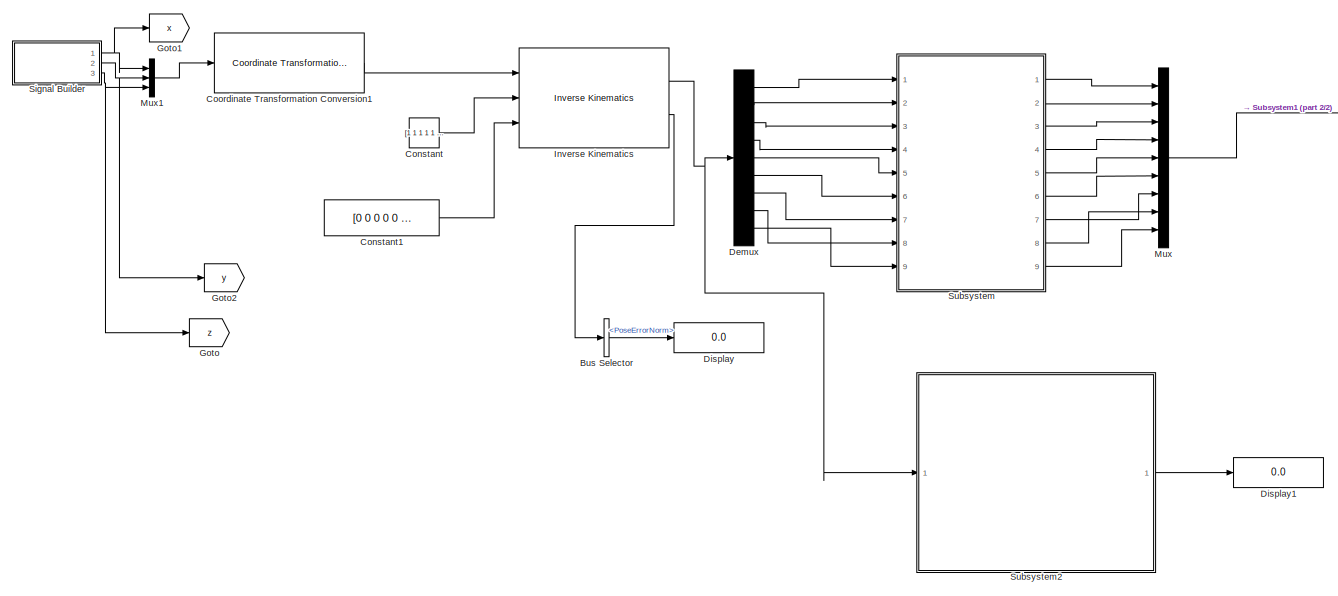
[diagram: root canvas - part 1/2, center side, full height]
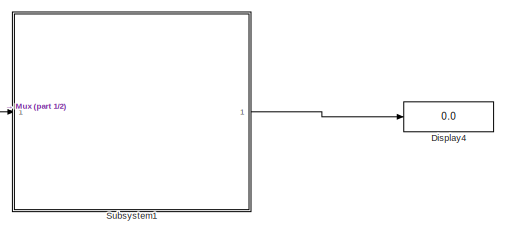
[diagram: root canvas - part 2/2, top right region]
MODEL slx_d25287b4f298
KIND model
CONFIG AbsTol = auto
CONFIG EnableMultiTasking = off
CONFIG FixedStep = auto
CONFIG MaxStep = auto
CONFIG MinStep = auto
CONFIG RelTol = 1e-3
CONFIG SampleTimeConstraint = Unconstrained
CONFIG SolverName = VariableStepAuto
CONFIG StartTime = 0.0
CONFIG StopTime = 10.0
WORKSPACE source: external: MATLAB File  (data not in archive)
BLOCK [BusSelector] Bus Selector
  OutputSignals = PoseErrorNorm
  Ports = [1, 1]
BLOCK [Constant] Constant
  Value = [1 1 1 1 1 1]
BLOCK [Constant] Constant1
  Value = [0 0 0 0 0 0 0 0 0]
BLOCK [Reference] Coordinate Transformation Conversion1  REF=robotcorelib/Coordinate Transformation Conversion
  Ports = [1, 1]
  SourceBlock = robotcorelib/Coordinate Transformation Conversion
  SourceProductBaseCode = NV,RO,RR,UV
  SourceType = robotics.slcore.internal.block.CoordinateTransformationConversion
BLOCK [Demux] Demux
  Outputs = 9
  Ports = [1, 9]
BLOCK [Display] Display
  Decimation = 1
  Ports = [1]
BLOCK [Display] Display1
  Decimation = 1
  Ports = [1]
BLOCK [Display] Display4
  Decimation = 1
  Ports = [1]
BLOCK [Goto] Goto
  GotoTag = z
BLOCK [Goto] Goto1
  GotoTag = x
BLOCK [Goto] Goto2
  GotoTag = y
BLOCK [Reference] Inverse Kinematics  REF=robotmaniplib/Inverse Kinematics
  Ports = [3, 2]
  SourceBlock = robotmaniplib/Inverse Kinematics
  SourceProductBaseCode = RO
  SourceType = Inverse Kinematics
BLOCK [Mux] Mux
  DisplayOption = bar
  Inputs = 9
  Ports = [9, 1]
BLOCK [Mux] Mux1
  DisplayOption = bar
  Inputs = 3
  Ports = [3, 1]
BLOCK [SubSystem] Signal Builder
  ClipboardFcn = sigbuilder_block('clipboard');
  CloseFcn = sigbuilder_block('close');
  ContinueFcn = sigbuilder_block('continue');
  CopyFcn = sigbuilder_block('copy');
  DeleteFcn = sigbuilder_block('delete');
  LoadFcn = sigbuilder_block('load');
  MaskHideContents = on
  ModelCloseFcn = sigbuilder_block('modelClose');
  NameChangeFcn = sigbuilder_block('namechange');
  OpenFcn = sigbuilder_block('open',[265.5 177 550.5 399.75 ]);
  PauseFcn = sigbuilder_block('pause');
  Ports = [0, 3]
  PreSaveFcn = sigbuilder_block('preSave');
  RequestExecContextInheritance = off
  StartFcn = sigbuilder_block('start');
  StopFcn = sigbuilder_block('stop');
  Tag = STV Subsys
BLOCK [Demux] Signal Builder/Demux
  DisplayOption = none
  Outputs = 3
  Ports = [1, 3]
  Tag = STV Demux
BLOCK [FromWorkspace] Signal Builder/FromWs
  Tag = STV FromWs
  VariableName = tuvar
BLOCK [Outport] Signal Builder/Signal 1
  Port = 2
  Tag = STV Outport
BLOCK [Outport] Signal Builder/Signal 2
  Tag = STV Outport
BLOCK [Outport] Signal Builder/Signal 3
  Port = 3
  Tag = STV Outport
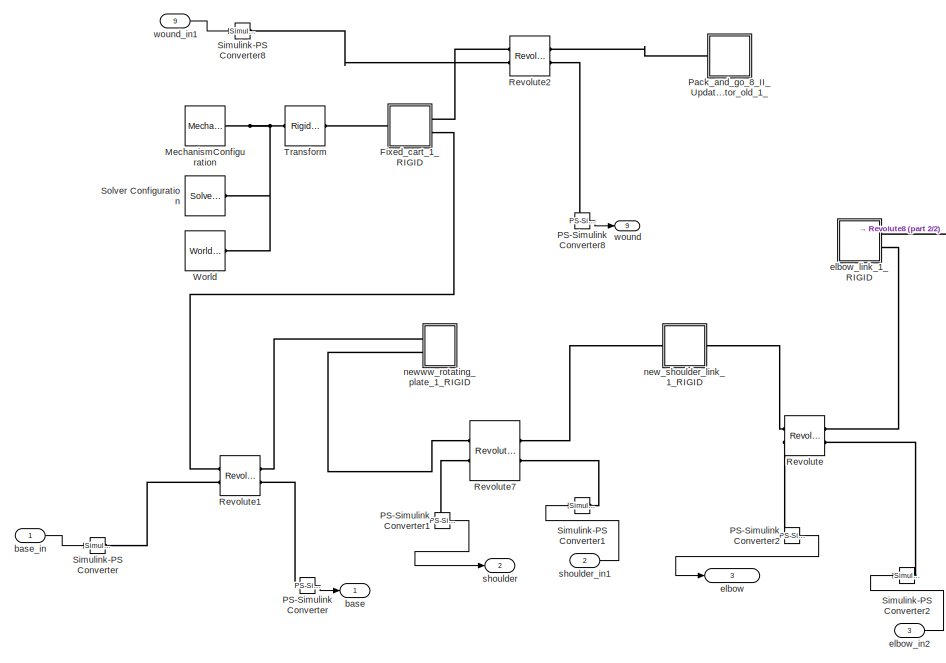
[diagram: Subsystem - part 1/2, middle left region]
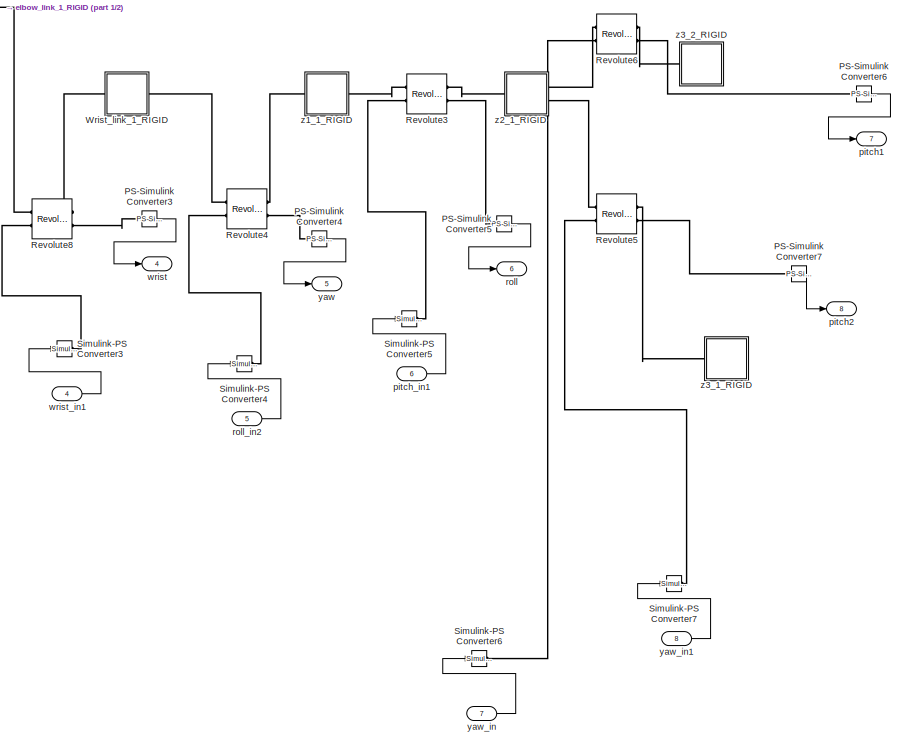
[diagram: Subsystem - part 2/2, right side, full height]
BLOCK [SubSystem] Subsystem
  Ports = [9, 9]
  RequestExecContextInheritance = off
BLOCK [SubSystem] Subsystem/Fixed_cart_1_RIGID
  Ports = [0, 0, 0, 0, 0, 1, 2]
  RequestExecContextInheritance = off
BLOCK [PMIOPort] Subsystem/Fixed_cart_1_RIGID/F
  Port = 3
  Side = Right
BLOCK [PMIOPort] Subsystem/Fixed_cart_1_RIGID/F1
  Port = 2
  Side = Right
BLOCK [PMIOPort] Subsystem/Fixed_cart_1_RIGID/F2
  Side = Left
BLOCK [Reference] Subsystem/Fixed_cart_1_RIGID/ReferenceFrame  REF=sm_lib/Frames and
Transforms/Reference
Frame
  Ports = [0, 0, 0, 0, 0, 0, 1]
  SourceBlock = sm_lib/Frames and\nTransforms/Reference\nFrame
  SourceProductBaseCode = MS
  SourceType = Reference\nFrame
BLOCK [Reference] Subsystem/Fixed_cart_1_RIGID/Solid  REF=sm_lib/Body Elements/File Solid
  Ports = [0, 0, 0, 0, 0, 0, 1]
  SourceBlock = sm_lib/Body Elements/File Solid
  SourceProductBaseCode = MS
  SourceType = File Solid
BLOCK [Reference] Subsystem/Fixed_cart_1_RIGID/Transform  REF=sm_lib/Frames and
Transforms/Rigid
Transform
  Ports = [0, 0, 0, 0, 0, 1, 1]
  SourceBlock = sm_lib/Frames and\nTransforms/Rigid\nTransform
  SourceProductBaseCode = MS
  SourceType = Rigid\nTransform
BLOCK [Reference] Subsystem/Fixed_cart_1_RIGID/Transform1  REF=sm_lib/Frames and
Transforms/Rigid
Transform
  Ports = [0, 0, 0, 0, 0, 1, 1]
  SourceBlock = sm_lib/Frames and\nTransforms/Rigid\nTransform
  SourceProductBaseCode = MS
  SourceType = Rigid\nTransform
BLOCK [Reference] Subsystem/MechanismConfiguration  REF=sm_lib/Utilities/Mechanism
Configuration
  Ports = [0, 0, 0, 0, 0, 0, 1]
  SourceBlock = sm_lib/Utilities/Mechanism\nConfiguration
  SourceProductBaseCode = MS
  SourceType = Mechanism\nConfiguration
BLOCK [Reference] Subsystem/PS-Simulink Converter  REF=nesl_utility/PS-Simulink
Converter
  Ports = [0, 1, 0, 0, 0, 1]
  SourceBlock = nesl_utility/PS-Simulink\nConverter
  SourceProductBaseCode = PW,SS
  SourceType = PS-Simulink\nConverter
BLOCK [Reference] Subsystem/PS-Simulink Converter1  REF=nesl_utility/PS-Simulink
Converter
  Ports = [0, 1, 0, 0, 0, 1]
  SourceBlock = nesl_utility/PS-Simulink\nConverter
  SourceProductBaseCode = PW,SS
  SourceType = PS-Simulink\nConverter
BLOCK [Reference] Subsystem/PS-Simulink Converter2  REF=nesl_utility/PS-Simulink
Converter
  Ports = [0, 1, 0, 0, 0, 1]
  SourceBlock = nesl_utility/PS-Simulink\nConverter
  SourceProductBaseCode = PW,SS
  SourceType = PS-Simulink\nConverter
BLOCK [Reference] Subsystem/PS-Simulink Converter3  REF=nesl_utility/PS-Simulink
Converter
  NameLocation = right
  Ports = [0, 1, 0, 0, 0, 1]
  SourceBlock = nesl_utility/PS-Simulink\nConverter
  SourceProductBaseCode = PW,SS
  SourceType = PS-Simulink\nConverter
BLOCK [Reference] Subsystem/PS-Simulink Converter4  REF=nesl_utility/PS-Simulink
Converter
  NameLocation = right
  Ports = [0, 1, 0, 0, 0, 1]
  SourceBlock = nesl_utility/PS-Simulink\nConverter
  SourceProductBaseCode = PW,SS
  SourceType = PS-Simulink\nConverter
BLOCK [Reference] Subsystem/PS-Simulink Converter5  REF=nesl_utility/PS-Simulink
Converter
  NameLocation = right
  Ports = [0, 1, 0, 0, 0, 1]
  SourceBlock = nesl_utility/PS-Simulink\nConverter
  SourceProductBaseCode = PW,SS
  SourceType = PS-Simulink\nConverter
BLOCK [Reference] Subsystem/PS-Simulink Converter6  REF=nesl_utility/PS-Simulink
Converter
  NameLocation = right
  Ports = [0, 1, 0, 0, 0, 1]
  SourceBlock = nesl_utility/PS-Simulink\nConverter
  SourceProductBaseCode = PW,SS
  SourceType = PS-Simulink\nConverter
BLOCK [Reference] Subsystem/PS-Simulink Converter7  REF=nesl_utility/PS-Simulink
Converter
  NameLocation = right
  Ports = [0, 1, 0, 0, 0, 1]
  SourceBlock = nesl_utility/PS-Simulink\nConverter
  SourceProductBaseCode = PW,SS
  SourceType = PS-Simulink\nConverter
BLOCK [Reference] Subsystem/PS-Simulink Converter8  REF=nesl_utility/PS-Simulink
Converter
  Ports = [0, 1, 0, 0, 0, 1]
  SourceBlock = nesl_utility/PS-Simulink\nConverter
  SourceProductBaseCode = PW,SS
  SourceType = PS-Simulink\nConverter
BLOCK [SubSystem] Subsystem/Pack_and_go_8_II_Updated_Final_Assembly_FileBase_Rotator_old_1_
  Ports = [0, 0, 0, 0, 0, 1]
  RequestExecContextInheritance = off
BLOCK [PMIOPort] Subsystem/Pack_and_go_8_II_Updated_Final_Assembly_FileBase_Rotator_old_1_/F
  Side = Left
BLOCK [Reference] Subsystem/Pack_and_go_8_II_Updated_Final_Assembly_FileBase_Rotator_old_1_/ReferenceFrame  REF=sm_lib/Frames and
Transforms/Reference
Frame
  Ports = [0, 0, 0, 0, 0, 0, 1]
  SourceBlock = sm_lib/Frames and\nTransforms/Reference\nFrame
  SourceProductBaseCode = MS
  SourceType = Reference\nFrame
BLOCK [Reference] Subsystem/Pack_and_go_8_II_Updated_Final_Assembly_FileBase_Rotator_old_1_/Solid  REF=sm_lib/Body Elements/File Solid
  Ports = [0, 0, 0, 0, 0, 0, 1]
  SourceBlock = sm_lib/Body Elements/File Solid
  SourceProductBaseCode = MS
  SourceType = File Solid
BLOCK [Reference] Subsystem/Pack_and_go_8_II_Updated_Final_Assembly_FileBase_Rotator_old_1_/Transform  REF=sm_lib/Frames and
Transforms/Rigid
Transform
  Ports = [0, 0, 0, 0, 0, 1, 1]
  SourceBlock = sm_lib/Frames and\nTransforms/Rigid\nTransform
  SourceProductBaseCode = MS
  SourceType = Rigid\nTransform
BLOCK [Reference] Subsystem/Revolute  REF=sm_lib/Joints/Revolute Joint
  Ports = [0, 0, 0, 0, 0, 2, 2]
  SourceBlock = sm_lib/Joints/Revolute Joint
  SourceProductBaseCode = MS
  SourceType = Revolute Joint
BLOCK [Reference] Subsystem/Revolute1  REF=sm_lib/Joints/Revolute Joint
  Ports = [0, 0, 0, 0, 0, 2, 2]
  SourceBlock = sm_lib/Joints/Revolute Joint
  SourceProductBaseCode = MS
  SourceType = Revolute Joint
BLOCK [Reference] Subsystem/Revolute2  REF=sm_lib/Joints/Revolute Joint
  Ports = [0, 0, 0, 0, 0, 2, 2]
  SourceBlock = sm_lib/Joints/Revolute Joint
  SourceProductBaseCode = MS
  SourceType = Revolute Joint
BLOCK [Reference] Subsystem/Revolute3  REF=sm_lib/Joints/Revolute Joint
  Ports = [0, 0, 0, 0, 0, 2, 2]
  SourceBlock = sm_lib/Joints/Revolute Joint
  SourceProductBaseCode = MS
  SourceType = Revolute Joint
BLOCK [Reference] Subsystem/Revolute4  REF=sm_lib/Joints/Revolute Joint
  Ports = [0, 0, 0, 0, 0, 2, 2]
  SourceBlock = sm_lib/Joints/Revolute Joint
  SourceProductBaseCode = MS
  SourceType = Revolute Joint
BLOCK [Reference] Subsystem/Revolute5  REF=sm_lib/Joints/Revolute Joint
  Ports = [0, 0, 0, 0, 0, 2, 2]
  SourceBlock = sm_lib/Joints/Revolute Joint
  SourceProductBaseCode = MS
  SourceType = Revolute Joint
BLOCK [Reference] Subsystem/Revolute6  REF=sm_lib/Joints/Revolute Joint
  Ports = [0, 0, 0, 0, 0, 2, 2]
  SourceBlock = sm_lib/Joints/Revolute Joint
  SourceProductBaseCode = MS
  SourceType = Revolute Joint
BLOCK [Reference] Subsystem/Revolute7  REF=sm_lib/Joints/Revolute Joint
  Ports = [0, 0, 0, 0, 0, 2, 2]
  SourceBlock = sm_lib/Joints/Revolute Joint
  SourceProductBaseCode = MS
  SourceType = Revolute Joint
BLOCK [Reference] Subsystem/Revolute8  REF=sm_lib/Joints/Revolute Joint
  Ports = [0, 0, 0, 0, 0, 2, 2]
  SourceBlock = sm_lib/Joints/Revolute Joint
  SourceProductBaseCode = MS
  SourceType = Revolute Joint
BLOCK [Reference] Subsystem/Simulink-PS Converter  REF=nesl_utility/Simulink-PS
Converter
  Ports = [1, 0, 0, 0, 0, 0, 1]
  SourceBlock = nesl_utility/Simulink-PS\nConverter
  SourceProductBaseCode = PW,SS
  SourceType = Simulink-PS\nConverter
BLOCK [Reference] Subsystem/Simulink-PS Converter1  REF=nesl_utility/Simulink-PS
Converter
  Ports = [1, 0, 0, 0, 0, 0, 1]
  SourceBlock = nesl_utility/Simulink-PS\nConverter
  SourceProductBaseCode = PW,SS
  SourceType = Simulink-PS\nConverter
BLOCK [Reference] Subsystem/Simulink-PS Converter2  REF=nesl_utility/Simulink-PS
Converter
  Ports = [1, 0, 0, 0, 0, 0, 1]
  SourceBlock = nesl_utility/Simulink-PS\nConverter
  SourceProductBaseCode = PW,SS
  SourceType = Simulink-PS\nConverter
BLOCK [Reference] Subsystem/Simulink-PS Converter3  REF=nesl_utility/Simulink-PS
Converter
  Ports = [1, 0, 0, 0, 0, 0, 1]
  SourceBlock = nesl_utility/Simulink-PS\nConverter
  SourceProductBaseCode = PW,SS
  SourceType = Simulink-PS\nConverter
BLOCK [Reference] Subsystem/Simulink-PS Converter4  REF=nesl_utility/Simulink-PS
Converter
  Ports = [1, 0, 0, 0, 0, 0, 1]
  SourceBlock = nesl_utility/Simulink-PS\nConverter
  SourceProductBaseCode = PW,SS
  SourceType = Simulink-PS\nConverter
BLOCK [Reference] Subsystem/Simulink-PS Converter5  REF=nesl_utility/Simulink-PS
Converter
  Ports = [1, 0, 0, 0, 0, 0, 1]
  SourceBlock = nesl_utility/Simulink-PS\nConverter
  SourceProductBaseCode = PW,SS
  SourceType = Simulink-PS\nConverter
BLOCK [Reference] Subsystem/Simulink-PS Converter6  REF=nesl_utility/Simulink-PS
Converter
  Ports = [1, 0, 0, 0, 0, 0, 1]
  SourceBlock = nesl_utility/Simulink-PS\nConverter
  SourceProductBaseCode = PW,SS
  SourceType = Simulink-PS\nConverter
BLOCK [Reference] Subsystem/Simulink-PS Converter7  REF=nesl_utility/Simulink-PS
Converter
  Ports = [1, 0, 0, 0, 0, 0, 1]
  SourceBlock = nesl_utility/Simulink-PS\nConverter
  SourceProductBaseCode = PW,SS
  SourceType = Simulink-PS\nConverter
BLOCK [Reference] Subsystem/Simulink-PS Converter8  REF=nesl_utility/Simulink-PS
Converter
  Ports = [1, 0, 0, 0, 0, 0, 1]
  SourceBlock = nesl_utility/Simulink-PS\nConverter
  SourceProductBaseCode = PW,SS
  SourceType = Simulink-PS\nConverter
BLOCK [Reference] Subsystem/Solver Configuration  REF=nesl_utility/Solver
Configuration
  Ports = [0, 0, 0, 0, 0, 0, 1]
  SourceBlock = nesl_utility/Solver\nConfiguration
  SourceProductBaseCode = PW,SS
  SourceType = Solver\nConfiguration
BLOCK [Reference] Subsystem/Transform  REF=sm_lib/Frames and
Transforms/Rigid
Transform
  Ports = [0, 0, 0, 0, 0, 1, 1]
  SourceBlock = sm_lib/Frames and\nTransforms/Rigid\nTransform
  SourceProductBaseCode = MS
  SourceType = Rigid\nTransform
BLOCK [Reference] Subsystem/World  REF=sm_lib/Frames and
Transforms/World Frame
  Ports = [0, 0, 0, 0, 0, 0, 1]
  SourceBlock = sm_lib/Frames and\nTransforms/World Frame
  SourceProductBaseCode = MS
  SourceType = World Frame
BLOCK [SubSystem] Subsystem/Wrist_link_1_RIGID
  Ports = [0, 0, 0, 0, 0, 1, 1]
  RequestExecContextInheritance = off
BLOCK [PMIOPort] Subsystem/Wrist_link_1_RIGID/F
  Port = 2
  Side = Right
BLOCK [PMIOPort] Subsystem/Wrist_link_1_RIGID/F1
  Side = Left
BLOCK [Reference] Subsystem/Wrist_link_1_RIGID/ReferenceFrame  REF=sm_lib/Frames and
Transforms/Reference
Frame
  Ports = [0, 0, 0, 0, 0, 0, 1]
  SourceBlock = sm_lib/Frames and\nTransforms/Reference\nFrame
  SourceProductBaseCode = MS
  SourceType = Reference\nFrame
BLOCK [Reference] Subsystem/Wrist_link_1_RIGID/Solid  REF=sm_lib/Body Elements/File Solid
  Ports = [0, 0, 0, 0, 0, 0, 1]
  SourceBlock = sm_lib/Body Elements/File Solid
  SourceProductBaseCode = MS
  SourceType = File Solid
BLOCK [Reference] Subsystem/Wrist_link_1_RIGID/Transform  REF=sm_lib/Frames and
Transforms/Rigid
Transform
  Ports = [0, 0, 0, 0, 0, 1, 1]
  SourceBlock = sm_lib/Frames and\nTransforms/Rigid\nTransform
  SourceProductBaseCode = MS
  SourceType = Rigid\nTransform
BLOCK [Reference] Subsystem/Wrist_link_1_RIGID/Transform1  REF=sm_lib/Frames and
Transforms/Rigid
Transform
  Ports = [0, 0, 0, 0, 0, 1, 1]
  SourceBlock = sm_lib/Frames and\nTransforms/Rigid\nTransform
  SourceProductBaseCode = MS
  SourceType = Rigid\nTransform
BLOCK [Outport] Subsystem/base
BLOCK [Inport] Subsystem/base_in
BLOCK [Outport] Subsystem/elbow
  Port = 3
BLOCK [Inport] Subsystem/elbow_in2
  Port = 3
BLOCK [SubSystem] Subsystem/elbow_link_1_RIGID
  Ports = [0, 0, 0, 0, 0, 0, 2]
  RequestExecContextInheritance = off
BLOCK [PMIOPort] Subsystem/elbow_link_1_RIGID/F
  Port = 2
  Side = Right
BLOCK [PMIOPort] Subsystem/elbow_link_1_RIGID/F1
  Side = Right
BLOCK [Reference] Subsystem/elbow_link_1_RIGID/ReferenceFrame  REF=sm_lib/Frames and
Transforms/Reference
Frame
  Ports = [0, 0, 0, 0, 0, 0, 1]
  SourceBlock = sm_lib/Frames and\nTransforms/Reference\nFrame
  SourceProductBaseCode = MS
  SourceType = Reference\nFrame
BLOCK [Reference] Subsystem/elbow_link_1_RIGID/Solid  REF=sm_lib/Body Elements/File Solid
  Ports = [0, 0, 0, 0, 0, 0, 1]
  SourceBlock = sm_lib/Body Elements/File Solid
  SourceProductBaseCode = MS
  SourceType = File Solid
BLOCK [Reference] Subsystem/elbow_link_1_RIGID/Transform  REF=sm_lib/Frames and
Transforms/Rigid
Transform
  Ports = [0, 0, 0, 0, 0, 1, 1]
  SourceBlock = sm_lib/Frames and\nTransforms/Rigid\nTransform
  SourceProductBaseCode = MS
  SourceType = Rigid\nTransform
BLOCK [Reference] Subsystem/elbow_link_1_RIGID/Transform1  REF=sm_lib/Frames and
Transforms/Rigid
Transform
  Ports = [0, 0, 0, 0, 0, 1, 1]
  SourceBlock = sm_lib/Frames and\nTransforms/Rigid\nTransform
  SourceProductBaseCode = MS
  SourceType = Rigid\nTransform
BLOCK [SubSystem] Subsystem/new_shoulder_link_1_RIGID
  Ports = [0, 0, 0, 0, 0, 1, 1]
  RequestExecContextInheritance = off
BLOCK [PMIOPort] Subsystem/new_shoulder_link_1_RIGID/F
  Side = Left
BLOCK [PMIOPort] Subsystem/new_shoulder_link_1_RIGID/F1
  Port = 2
  Side = Right
BLOCK [Reference] Subsystem/new_shoulder_link_1_RIGID/ReferenceFrame  REF=sm_lib/Frames and
Transforms/Reference
Frame
  Ports = [0, 0, 0, 0, 0, 0, 1]
  SourceBlock = sm_lib/Frames and\nTransforms/Reference\nFrame
  SourceProductBaseCode = MS
  SourceType = Reference\nFrame
BLOCK [Reference] Subsystem/new_shoulder_link_1_RIGID/Solid  REF=sm_lib/Body Elements/File Solid
  Ports = [0, 0, 0, 0, 0, 0, 1]
  SourceBlock = sm_lib/Body Elements/File Solid
  SourceProductBaseCode = MS
  SourceType = File Solid
BLOCK [Reference] Subsystem/new_shoulder_link_1_RIGID/Transform  REF=sm_lib/Frames and
Transforms/Rigid
Transform
  Ports = [0, 0, 0, 0, 0, 1, 1]
  SourceBlock = sm_lib/Frames and\nTransforms/Rigid\nTransform
  SourceProductBaseCode = MS
  SourceType = Rigid\nTransform
BLOCK [Reference] Subsystem/new_shoulder_link_1_RIGID/Transform1  REF=sm_lib/Frames and
Transforms/Rigid
Transform
  Ports = [0, 0, 0, 0, 0, 1, 1]
  SourceBlock = sm_lib/Frames and\nTransforms/Rigid\nTransform
  SourceProductBaseCode = MS
  SourceType = Rigid\nTransform
BLOCK [SubSystem] Subsystem/newww_rotating_plate_1_RIGID
  Ports = [0, 0, 0, 0, 0, 2]
  RequestExecContextInheritance = off
BLOCK [PMIOPort] Subsystem/newww_rotating_plate_1_RIGID/F
  Side = Left
BLOCK [PMIOPort] Subsystem/newww_rotating_plate_1_RIGID/F1
  Port = 2
  Side = Left
BLOCK [Reference] Subsystem/newww_rotating_plate_1_RIGID/ReferenceFrame  REF=sm_lib/Frames and
Transforms/Reference
Frame
  Ports = [0, 0, 0, 0, 0, 0, 1]
  SourceBlock = sm_lib/Frames and\nTransforms/Reference\nFrame
  SourceProductBaseCode = MS
  SourceType = Reference\nFrame
BLOCK [Reference] Subsystem/newww_rotating_plate_1_RIGID/Solid  REF=sm_lib/Body Elements/File Solid
  Ports = [0, 0, 0, 0, 0, 0, 1]
  SourceBlock = sm_lib/Body Elements/File Solid
  SourceProductBaseCode = MS
  SourceType = File Solid
BLOCK [Reference] Subsystem/newww_rotating_plate_1_RIGID/Transform  REF=sm_lib/Frames and
Transforms/Rigid
Transform
  Ports = [0, 0, 0, 0, 0, 1, 1]
  SourceBlock = sm_lib/Frames and\nTransforms/Rigid\nTransform
  SourceProductBaseCode = MS
  SourceType = Rigid\nTransform
BLOCK [Reference] Subsystem/newww_rotating_plate_1_RIGID/Transform1  REF=sm_lib/Frames and
Transforms/Rigid
Transform
  Ports = [0, 0, 0, 0, 0, 1, 1]
  SourceBlock = sm_lib/Frames and\nTransforms/Rigid\nTransform
  SourceProductBaseCode = MS
  SourceType = Rigid\nTransform
BLOCK [Outport] Subsystem/pitch1
  Port = 7
BLOCK [Outport] Subsystem/pitch2
  Port = 8
BLOCK [Inport] Subsystem/pitch_in1
  Port = 6
BLOCK [Outport] Subsystem/roll
  Port = 6
BLOCK [Inport] Subsystem/roll_in2
  Port = 5
BLOCK [Outport] Subsystem/shoulder
  Port = 2
BLOCK [Inport] Subsystem/shoulder_in1
  Port = 2
BLOCK [Outport] Subsystem/wound
  Port = 9
BLOCK [Inport] Subsystem/wound_in1
  Port = 9
BLOCK [Outport] Subsystem/wrist
  Port = 4
BLOCK [Inport] Subsystem/wrist_in1
  Port = 4
BLOCK [Outport] Subsystem/yaw
  Port = 5
BLOCK [Inport] Subsystem/yaw_in
  Port = 7
BLOCK [Inport] Subsystem/yaw_in1
  Port = 8
BLOCK [SubSystem] Subsystem/z1_1_RIGID
  Ports = [0, 0, 0, 0, 0, 1, 1]
  RequestExecContextInheritance = off
BLOCK [PMIOPort] Subsystem/z1_1_RIGID/F
  Port = 2
  Side = Right
BLOCK [PMIOPort] Subsystem/z1_1_RIGID/F1
  Side = Left
BLOCK [Reference] Subsystem/z1_1_RIGID/ReferenceFrame  REF=sm_lib/Frames and
Transforms/Reference
Frame
  Ports = [0, 0, 0, 0, 0, 0, 1]
  SourceBlock = sm_lib/Frames and\nTransforms/Reference\nFrame
  SourceProductBaseCode = MS
  SourceType = Reference\nFrame
BLOCK [Reference] Subsystem/z1_1_RIGID/Solid  REF=sm_lib/Body Elements/File Solid
  Ports = [0, 0, 0, 0, 0, 0, 1]
  SourceBlock = sm_lib/Body Elements/File Solid
  SourceProductBaseCode = MS
  SourceType = File Solid
BLOCK [Reference] Subsystem/z1_1_RIGID/Transform  REF=sm_lib/Frames and
Transforms/Rigid
Transform
  Ports = [0, 0, 0, 0, 0, 1, 1]
  SourceBlock = sm_lib/Frames and\nTransforms/Rigid\nTransform
  SourceProductBaseCode = MS
  SourceType = Rigid\nTransform
BLOCK [Reference] Subsystem/z1_1_RIGID/Transform1  REF=sm_lib/Frames and
Transforms/Rigid
Transform
  Ports = [0, 0, 0, 0, 0, 1, 1]
  SourceBlock = sm_lib/Frames and\nTransforms/Rigid\nTransform
  SourceProductBaseCode = MS
  SourceType = Rigid\nTransform
BLOCK [SubSystem] Subsystem/z2_1_RIGID
  Ports = [0, 0, 0, 0, 0, 1, 2]
  RequestExecContextInheritance = off
BLOCK [PMIOPort] Subsystem/z2_1_RIGID/F
  Side = Left
BLOCK [PMIOPort] Subsystem/z2_1_RIGID/F1
  Port = 3
  Side = Right
BLOCK [PMIOPort] Subsystem/z2_1_RIGID/F2
  Port = 2
  Side = Right
BLOCK [Reference] Subsystem/z2_1_RIGID/ReferenceFrame  REF=sm_lib/Frames and
Transforms/Reference
Frame
  Ports = [0, 0, 0, 0, 0, 0, 1]
  SourceBlock = sm_lib/Frames and\nTransforms/Reference\nFrame
  SourceProductBaseCode = MS
  SourceType = Reference\nFrame
BLOCK [Reference] Subsystem/z2_1_RIGID/Solid  REF=sm_lib/Body Elements/File Solid
  Ports = [0, 0, 0, 0, 0, 0, 1]
  SourceBlock = sm_lib/Body Elements/File Solid
  SourceProductBaseCode = MS
  SourceType = File Solid
BLOCK [Reference] Subsystem/z2_1_RIGID/Transform  REF=sm_lib/Frames and
Transforms/Rigid
Transform
  Ports = [0, 0, 0, 0, 0, 1, 1]
  SourceBlock = sm_lib/Frames and\nTransforms/Rigid\nTransform
  SourceProductBaseCode = MS
  SourceType = Rigid\nTransform
BLOCK [Reference] Subsystem/z2_1_RIGID/Transform1  REF=sm_lib/Frames and
Transforms/Rigid
Transform
  Ports = [0, 0, 0, 0, 0, 1, 1]
  SourceBlock = sm_lib/Frames and\nTransforms/Rigid\nTransform
  SourceProductBaseCode = MS
  SourceType = Rigid\nTransform
BLOCK [Reference] Subsystem/z2_1_RIGID/Transform2  REF=sm_lib/Frames and
Transforms/Rigid
Transform
  Ports = [0, 0, 0, 0, 0, 1, 1]
  SourceBlock = sm_lib/Frames and\nTransforms/Rigid\nTransform
  SourceProductBaseCode = MS
  SourceType = Rigid\nTransform
BLOCK [SubSystem] Subsystem/z3_1_RIGID
  Ports = [0, 0, 0, 0, 0, 1]
  RequestExecContextInheritance = off
BLOCK [PMIOPort] Subsystem/z3_1_RIGID/F
  Side = Left
BLOCK [Reference] Subsystem/z3_1_RIGID/ReferenceFrame  REF=sm_lib/Frames and
Transforms/Reference
Frame
  Ports = [0, 0, 0, 0, 0, 0, 1]
  SourceBlock = sm_lib/Frames and\nTransforms/Reference\nFrame
  SourceProductBaseCode = MS
  SourceType = Reference\nFrame
BLOCK [Reference] Subsystem/z3_1_RIGID/Solid  REF=sm_lib/Body Elements/File Solid
  Ports = [0, 0, 0, 0, 0, 0, 1]
  SourceBlock = sm_lib/Body Elements/File Solid
  SourceProductBaseCode = MS
  SourceType = File Solid
BLOCK [Reference] Subsystem/z3_1_RIGID/Transform  REF=sm_lib/Frames and
Transforms/Rigid
Transform
  Ports = [0, 0, 0, 0, 0, 1, 1]
  SourceBlock = sm_lib/Frames and\nTransforms/Rigid\nTransform
  SourceProductBaseCode = MS
  SourceType = Rigid\nTransform
BLOCK [SubSystem] Subsystem/z3_2_RIGID
  Ports = [0, 0, 0, 0, 0, 1]
  RequestExecContextInheritance = off
BLOCK [PMIOPort] Subsystem/z3_2_RIGID/F
  Side = Left
BLOCK [Reference] Subsystem/z3_2_RIGID/ReferenceFrame  REF=sm_lib/Frames and
Transforms/Reference
Frame
  Ports = [0, 0, 0, 0, 0, 0, 1]
  SourceBlock = sm_lib/Frames and\nTransforms/Reference\nFrame
  SourceProductBaseCode = MS
  SourceType = Reference\nFrame
BLOCK [Reference] Subsystem/z3_2_RIGID/Solid  REF=sm_lib/Body Elements/File Solid
  Ports = [0, 0, 0, 0, 0, 0, 1]
  SourceBlock = sm_lib/Body Elements/File Solid
  SourceProductBaseCode = MS
  SourceType = File Solid
BLOCK [Reference] Subsystem/z3_2_RIGID/Transform  REF=sm_lib/Frames and
Transforms/Rigid
Transform
  Ports = [0, 0, 0, 0, 0, 1, 1]
  SourceBlock = sm_lib/Frames and\nTransforms/Rigid\nTransform
  SourceProductBaseCode = MS
  SourceType = Rigid\nTransform
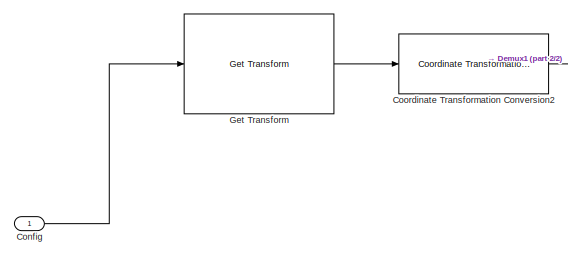
[diagram: Subsystem1 - part 1/2, middle left region]
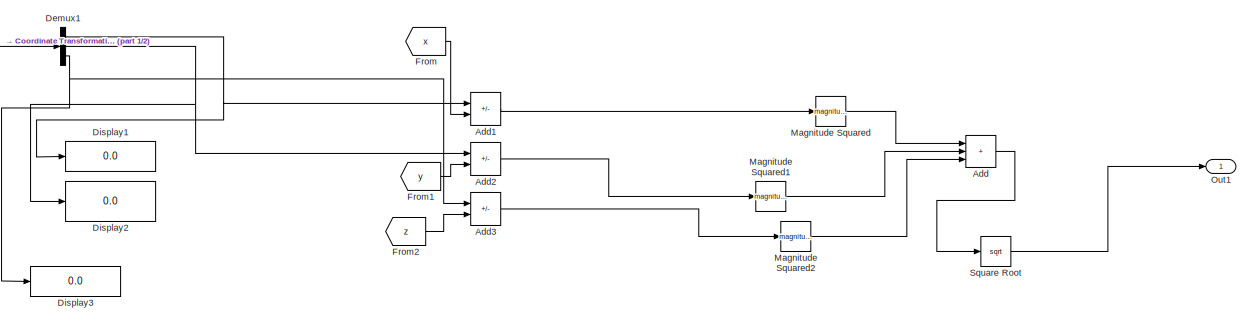
[diagram: Subsystem1 - part 2/2, center side, full height]
BLOCK [SubSystem] Subsystem1
  Ports = [1, 1]
  RequestExecContextInheritance = off
BLOCK [Sum] Subsystem1/Add
  IconShape = rectangular
  Inputs = +++
  Ports = [3, 1]
BLOCK [Sum] Subsystem1/Add1
  IconShape = rectangular
  Inputs = +-
  Ports = [2, 1]
BLOCK [Sum] Subsystem1/Add2
  IconShape = rectangular
  Inputs = +-
  Ports = [2, 1]
BLOCK [Sum] Subsystem1/Add3
  IconShape = rectangular
  Inputs = +-
  Ports = [2, 1]
BLOCK [Inport] Subsystem1/Config
BLOCK [Reference] Subsystem1/Coordinate Transformation Conversion2  REF=robotcorelib/Coordinate Transformation Conversion
  Ports = [1, 1]
  SourceBlock = robotcorelib/Coordinate Transformation Conversion
  SourceProductBaseCode = NV,RO,RR,UV
  SourceType = robotics.slcore.internal.block.CoordinateTransformationConversion
BLOCK [Demux] Subsystem1/Demux1
  Outputs = 3
  Ports = [1, 3]
BLOCK [Display] Subsystem1/Display1
  Decimation = 1
  Ports = [1]
BLOCK [Display] Subsystem1/Display2
  Decimation = 1
  Ports = [1]
BLOCK [Display] Subsystem1/Display3
  Decimation = 1
  Ports = [1]
BLOCK [From] Subsystem1/From
  GotoTag = x
BLOCK [From] Subsystem1/From1
  GotoTag = y
BLOCK [From] Subsystem1/From2
  GotoTag = z
BLOCK [Reference] Subsystem1/Get Transform  REF=robotmaniplib/Get Transform
  Ports = [1, 1]
  SourceBlock = robotmaniplib/Get Transform
  SourceProductBaseCode = RO
  SourceType = Get Transform
BLOCK [Math] Subsystem1/Magnitude Squared
  Operator = magnitude^2
  Ports = [1, 1]
BLOCK [Math] Subsystem1/Magnitude Squared1
  Operator = magnitude^2
  Ports = [1, 1]
BLOCK [Math] Subsystem1/Magnitude Squared2
  Operator = magnitude^2
  Ports = [1, 1]
BLOCK [Outport] Subsystem1/Out1
BLOCK [Sqrt] Subsystem1/Square Root
BLOCK [SubSystem] Subsystem2
  Ports = [1, 1]
  RequestExecContextInheritance = off
BLOCK [Sum] Subsystem2/Add
  IconShape = rectangular
  Inputs = +++
  Ports = [3, 1]
BLOCK [Sum] Subsystem2/Add1
  IconShape = rectangular
  Inputs = +-
  Ports = [2, 1]
BLOCK [Sum] Subsystem2/Add2
  IconShape = rectangular
  Inputs = +-
  Ports = [2, 1]
BLOCK [Sum] Subsystem2/Add3
  IconShape = rectangular
  Inputs = +-
  Ports = [2, 1]
BLOCK [Inport] Subsystem2/Config
BLOCK [Reference] Subsystem2/Coordinate Transformation Conversion2  REF=robotcorelib/Coordinate Transformation Conversion
  Ports = [1, 1]
  SourceBlock = robotcorelib/Coordinate Transformation Conversion
  SourceProductBaseCode = NV,RO,RR,UV
  SourceType = robotics.slcore.internal.block.CoordinateTransformationConversion
BLOCK [Demux] Subsystem2/Demux1
  Outputs = 3
  Ports = [1, 3]
BLOCK [Display] Subsystem2/Display1
  Decimation = 1
  Ports = [1]
BLOCK [Display] Subsystem2/Display2
  Decimation = 1
  Ports = [1]
BLOCK [Display] Subsystem2/Display3
  Decimation = 1
  Ports = [1]
BLOCK [From] Subsystem2/From
  GotoTag = x
BLOCK [From] Subsystem2/From1
  GotoTag = y
BLOCK [From] Subsystem2/From2
  GotoTag = z
BLOCK [Reference] Subsystem2/Get Transform  REF=robotmaniplib/Get Transform
  Ports = [1, 1]
  SourceBlock = robotmaniplib/Get Transform
  SourceProductBaseCode = RO
  SourceType = Get Transform
BLOCK [Math] Subsystem2/Magnitude Squared
  Operator = magnitude^2
  Ports = [1, 1]
BLOCK [Math] Subsystem2/Magnitude Squared1
  Operator = magnitude^2
  Ports = [1, 1]
BLOCK [Math] Subsystem2/Magnitude Squared2
  Operator = magnitude^2
  Ports = [1, 1]
BLOCK [Outport] Subsystem2/Out1
BLOCK [Sqrt] Subsystem2/Square Root
LINE Bus Selector:1 -> Display:1
LINE Constant1:1 -> Inverse Kinematics:3
LINE Constant:1 -> Inverse Kinematics:2
LINE Coordinate Transformation Conversion1:1 -> Inverse Kinematics:1
LINE Demux:1 -> Subsystem:1
LINE Demux:2 -> Subsystem:2
LINE Demux:3 -> Subsystem:3
LINE Demux:4 -> Subsystem:4
LINE Demux:5 -> Subsystem:5
LINE Demux:6 -> Subsystem:6
LINE Demux:7 -> Subsystem:7
LINE Demux:8 -> Subsystem:8
LINE Demux:9 -> Subsystem:9
NET Inverse Kinematics:1 -> Demux:1, Subsystem2:1
LINE Inverse Kinematics:2 -> Bus Selector:1
LINE Mux1:1 -> Coordinate Transformation Conversion1:1
LINE Mux:1 -> Subsystem1:1
NET Signal Builder:1 -> Goto1:1, Mux1:1
NET Signal Builder:2 -> Goto2:1, Mux1:2
NET Signal Builder:3 -> Goto:1, Mux1:3
LINE Subsystem/PS-Simulink Converter1:1 -> Subsystem/shoulder:1
LINE Subsystem/PS-Simulink Converter2:1 -> Subsystem/elbow:1
LINE Subsystem/PS-Simulink Converter3:1 -> Subsystem/wrist:1
LINE Subsystem/PS-Simulink Converter4:1 -> Subsystem/yaw:1
LINE Subsystem/PS-Simulink Converter5:1 -> Subsystem/roll:1
LINE Subsystem/PS-Simulink Converter6:1 -> Subsystem/pitch1:1
LINE Subsystem/PS-Simulink Converter7:1 -> Subsystem/pitch2:1
LINE Subsystem/PS-Simulink Converter8:1 -> Subsystem/wound:1
LINE Subsystem/PS-Simulink Converter:1 -> Subsystem/base:1
LINE Subsystem/base_in:1 -> Subsystem/Simulink-PS Converter:1
LINE Subsystem/elbow_in2:1 -> Subsystem/Simulink-PS Converter2:1
LINE Subsystem/pitch_in1:1 -> Subsystem/Simulink-PS Converter5:1
LINE Subsystem/roll_in2:1 -> Subsystem/Simulink-PS Converter4:1
LINE Subsystem/shoulder_in1:1 -> Subsystem/Simulink-PS Converter1:1
LINE Subsystem/wound_in1:1 -> Subsystem/Simulink-PS Converter8:1
LINE Subsystem/wrist_in1:1 -> Subsystem/Simulink-PS Converter3:1
LINE Subsystem/yaw_in1:1 -> Subsystem/Simulink-PS Converter7:1
LINE Subsystem/yaw_in:1 -> Subsystem/Simulink-PS Converter6:1
LINE Subsystem1/Add1:1 -> Subsystem1/Magnitude Squared:1
LINE Subsystem1/Add2:1 -> Subsystem1/Magnitude Squared1:1
LINE Subsystem1/Add3:1 -> Subsystem1/Magnitude Squared2:1
LINE Subsystem1/Add:1 -> Subsystem1/Square Root:1
LINE Subsystem1/Config:1 -> Subsystem1/Get Transform:1
LINE Subsystem1/Coordinate Transformation Conversion2:1 -> Subsystem1/Demux1:1
NET Subsystem1/Demux1:1 -> Subsystem1/Add1:1, Subsystem1/Display1:1
NET Subsystem1/Demux1:2 -> Subsystem1/Add2:1, Subsystem1/Display2:1
NET Subsystem1/Demux1:3 -> Subsystem1/Add3:1, Subsystem1/Display3:1
LINE Subsystem1/From1:1 -> Subsystem1/Add2:2
LINE Subsystem1/From2:1 -> Subsystem1/Add3:2
LINE Subsystem1/From:1 -> Subsystem1/Add1:2
LINE Subsystem1/Get Transform:1 -> Subsystem1/Coordinate Transformation Conversion2:1
LINE Subsystem1/Magnitude Squared1:1 -> Subsystem1/Add:2
LINE Subsystem1/Magnitude Squared2:1 -> Subsystem1/Add:3
LINE Subsystem1/Magnitude Squared:1 -> Subsystem1/Add:1
LINE Subsystem1/Square Root:1 -> Subsystem1/Out1:1
LINE Subsystem1:1 -> Display4:1
LINE Subsystem2/Add1:1 -> Subsystem2/Magnitude Squared:1
LINE Subsystem2/Add2:1 -> Subsystem2/Magnitude Squared1:1
LINE Subsystem2/Add3:1 -> Subsystem2/Magnitude Squared2:1
LINE Subsystem2/Add:1 -> Subsystem2/Square Root:1
LINE Subsystem2/Config:1 -> Subsystem2/Get Transform:1
LINE Subsystem2/Coordinate Transformation Conversion2:1 -> Subsystem2/Demux1:1
NET Subsystem2/Demux1:1 -> Subsystem2/Add1:1, Subsystem2/Display1:1
NET Subsystem2/Demux1:2 -> Subsystem2/Add2:1, Subsystem2/Display2:1
NET Subsystem2/Demux1:3 -> Subsystem2/Add3:1, Subsystem2/Display3:1
LINE Subsystem2/From1:1 -> Subsystem2/Add2:2
LINE Subsystem2/From2:1 -> Subsystem2/Add3:2
LINE Subsystem2/From:1 -> Subsystem2/Add1:2
LINE Subsystem2/Get Transform:1 -> Subsystem2/Coordinate Transformation Conversion2:1
LINE Subsystem2/Magnitude Squared1:1 -> Subsystem2/Add:2
LINE Subsystem2/Magnitude Squared2:1 -> Subsystem2/Add:3
LINE Subsystem2/Magnitude Squared:1 -> Subsystem2/Add:1
LINE Subsystem2/Square Root:1 -> Subsystem2/Out1:1
LINE Subsystem2:1 -> Display1:1
LINE Subsystem:1 -> Mux:1
LINE Subsystem:2 -> Mux:2
LINE Subsystem:3 -> Mux:3
LINE Subsystem:4 -> Mux:4
LINE Subsystem:5 -> Mux:5
LINE Subsystem:6 -> Mux:6
LINE Subsystem:7 -> Mux:7
LINE Subsystem:8 -> Mux:8
LINE Subsystem:9 -> Mux:9
PLINE Subsystem/Fixed_cart_1_RIGID/F1:RConn1 -- Subsystem/Fixed_cart_1_RIGID/Transform1:RConn1
PNET net1: Subsystem/Fixed_cart_1_RIGID/F2:RConn1 -- Subsystem/Fixed_cart_1_RIGID/ReferenceFrame:RConn1 -- Subsystem/Fixed_cart_1_RIGID/Solid:RConn1 -- Subsystem/Fixed_cart_1_RIGID/Transform1:LConn1 -- Subsystem/Fixed_cart_1_RIGID/Transform:LConn1
PLINE Subsystem/Fixed_cart_1_RIGID/F:RConn1 -- Subsystem/Fixed_cart_1_RIGID/Transform:RConn1
PLINE Subsystem/Fixed_cart_1_RIGID:LConn1 -- Subsystem/Transform:RConn1
PLINE Subsystem/Fixed_cart_1_RIGID:RConn1 -- Subsystem/Revolute2:LConn1
PLINE Subsystem/Fixed_cart_1_RIGID:RConn2 -- Subsystem/Revolute1:LConn1
PNET net2: Subsystem/MechanismConfiguration:RConn1 -- Subsystem/Solver Configuration:RConn1 -- Subsystem/Transform:LConn1 -- Subsystem/World:RConn1
PLINE Subsystem/PS-Simulink Converter1:LConn1 -- Subsystem/Revolute7:RConn2
PLINE Subsystem/PS-Simulink Converter2:LConn1 -- Subsystem/Revolute:RConn2
PLINE Subsystem/PS-Simulink Converter3:LConn1 -- Subsystem/Revolute8:RConn2
PLINE Subsystem/PS-Simulink Converter4:LConn1 -- Subsystem/Revolute4:RConn2
PLINE Subsystem/PS-Simulink Converter5:LConn1 -- Subsystem/Revolute3:RConn2
PLINE Subsystem/PS-Simulink Converter6:LConn1 -- Subsystem/Revolute6:RConn2
PLINE Subsystem/PS-Simulink Converter7:LConn1 -- Subsystem/Revolute5:RConn2
PLINE Subsystem/PS-Simulink Converter8:LConn1 -- Subsystem/Revolute2:RConn2
PLINE Subsystem/PS-Simulink Converter:LConn1 -- Subsystem/Revolute1:RConn2
PLINE Subsystem/Pack_and_go_8_II_Updated_Final_Assembly_FileBase_Rotator_old_1_/F:RConn1 -- Subsystem/Pack_and_go_8_II_Updated_Final_Assembly_FileBase_Rotator_old_1_/Transform:RConn1
PNET net3: Subsystem/Pack_and_go_8_II_Updated_Final_Assembly_FileBase_Rotator_old_1_/ReferenceFrame:RConn1 -- Subsystem/Pack_and_go_8_II_Updated_Final_Assembly_FileBase_Rotator_old_1_/Solid:RConn1 -- Subsystem/Pack_and_go_8_II_Updated_Final_Assembly_FileBase_Rotator_old_1_/Transform:LConn1
PLINE Subsystem/Pack_and_go_8_II_Updated_Final_Assembly_FileBase_Rotator_old_1_:LConn1 -- Subsystem/Revolute2:RConn1
PLINE Subsystem/Revolute1:LConn2 -- Subsystem/Simulink-PS Converter:RConn1
PLINE Subsystem/Revolute1:RConn1 -- Subsystem/newww_rotating_plate_1_RIGID:LConn1
PLINE Subsystem/Revolute2:LConn2 -- Subsystem/Simulink-PS Converter8:RConn1
PLINE Subsystem/Revolute3:LConn1 -- Subsystem/z1_1_RIGID:RConn1
PLINE Subsystem/Revolute3:LConn2 -- Subsystem/Simulink-PS Converter5:RConn1
PLINE Subsystem/Revolute3:RConn1 -- Subsystem/z2_1_RIGID:LConn1
PLINE Subsystem/Revolute4:LConn1 -- Subsystem/Wrist_link_1_RIGID:RConn1
PLINE Subsystem/Revolute4:LConn2 -- Subsystem/Simulink-PS Converter4:RConn1
PLINE Subsystem/Revolute4:RConn1 -- Subsystem/z1_1_RIGID:LConn1
PLINE Subsystem/Revolute5:LConn1 -- Subsystem/z2_1_RIGID:RConn2
PLINE Subsystem/Revolute5:LConn2 -- Subsystem/Simulink-PS Converter7:RConn1
PLINE Subsystem/Revolute5:RConn1 -- Subsystem/z3_1_RIGID:LConn1
PLINE Subsystem/Revolute6:LConn1 -- Subsystem/z2_1_RIGID:RConn1
PLINE Subsystem/Revolute6:LConn2 -- Subsystem/Simulink-PS Converter6:RConn1
PLINE Subsystem/Revolute6:RConn1 -- Subsystem/z3_2_RIGID:LConn1
PLINE Subsystem/Revolute7:LConn1 -- Subsystem/new_shoulder_link_1_RIGID:RConn1
PLINE Subsystem/Revolute7:LConn2 -- Subsystem/Simulink-PS Converter1:RConn1
PLINE Subsystem/Revolute7:RConn1 -- Subsystem/newww_rotating_plate_1_RIGID:LConn2
PLINE Subsystem/Revolute8:LConn1 -- Subsystem/elbow_link_1_RIGID:RConn1
PLINE Subsystem/Revolute8:LConn2 -- Subsystem/Simulink-PS Converter3:RConn1
PLINE Subsystem/Revolute8:RConn1 -- Subsystem/Wrist_link_1_RIGID:LConn1
PLINE Subsystem/Revolute:LConn1 -- Subsystem/elbow_link_1_RIGID:RConn2
PLINE Subsystem/Revolute:LConn2 -- Subsystem/Simulink-PS Converter2:RConn1
PLINE Subsystem/Revolute:RConn1 -- Subsystem/new_shoulder_link_1_RIGID:LConn1
PLINE Subsystem/Wrist_link_1_RIGID/F1:RConn1 -- Subsystem/Wrist_link_1_RIGID/Transform1:RConn1
PLINE Subsystem/Wrist_link_1_RIGID/F:RConn1 -- Subsystem/Wrist_link_1_RIGID/Transform:RConn1
PNET net4: Subsystem/Wrist_link_1_RIGID/ReferenceFrame:RConn1 -- Subsystem/Wrist_link_1_RIGID/Solid:RConn1 -- Subsystem/Wrist_link_1_RIGID/Transform1:LConn1 -- Subsystem/Wrist_link_1_RIGID/Transform:LConn1
PLINE Subsystem/elbow_link_1_RIGID/F1:RConn1 -- Subsystem/elbow_link_1_RIGID/Transform1:RConn1
PLINE Subsystem/elbow_link_1_RIGID/F:RConn1 -- Subsystem/elbow_link_1_RIGID/Transform:RConn1
PNET net5: Subsystem/elbow_link_1_RIGID/ReferenceFrame:RConn1 -- Subsystem/elbow_link_1_RIGID/Solid:RConn1 -- Subsystem/elbow_link_1_RIGID/Transform1:LConn1 -- Subsystem/elbow_link_1_RIGID/Transform:LConn1
PLINE Subsystem/new_shoulder_link_1_RIGID/F1:RConn1 -- Subsystem/new_shoulder_link_1_RIGID/Transform1:RConn1
PLINE Subsystem/new_shoulder_link_1_RIGID/F:RConn1 -- Subsystem/new_shoulder_link_1_RIGID/Transform:RConn1
PNET net6: Subsystem/new_shoulder_link_1_RIGID/ReferenceFrame:RConn1 -- Subsystem/new_shoulder_link_1_RIGID/Solid:RConn1 -- Subsystem/new_shoulder_link_1_RIGID/Transform1:LConn1 -- Subsystem/new_shoulder_link_1_RIGID/Transform:LConn1
PLINE Subsystem/newww_rotating_plate_1_RIGID/F1:RConn1 -- Subsystem/newww_rotating_plate_1_RIGID/Transform1:RConn1
PLINE Subsystem/newww_rotating_plate_1_RIGID/F:RConn1 -- Subsystem/newww_rotating_plate_1_RIGID/Transform:RConn1
PNET net7: Subsystem/newww_rotating_plate_1_RIGID/ReferenceFrame:RConn1 -- Subsystem/newww_rotating_plate_1_RIGID/Solid:RConn1 -- Subsystem/newww_rotating_plate_1_RIGID/Transform1:LConn1 -- Subsystem/newww_rotating_plate_1_RIGID/Transform:LConn1
PLINE Subsystem/z1_1_RIGID/F1:RConn1 -- Subsystem/z1_1_RIGID/Transform1:RConn1
PLINE Subsystem/z1_1_RIGID/F:RConn1 -- Subsystem/z1_1_RIGID/Transform:RConn1
PNET net8: Subsystem/z1_1_RIGID/ReferenceFrame:RConn1 -- Subsystem/z1_1_RIGID/Solid:RConn1 -- Subsystem/z1_1_RIGID/Transform1:LConn1 -- Subsystem/z1_1_RIGID/Transform:LConn1
PLINE Subsystem/z2_1_RIGID/F1:RConn1 -- Subsystem/z2_1_RIGID/Transform1:RConn1
PLINE Subsystem/z2_1_RIGID/F2:RConn1 -- Subsystem/z2_1_RIGID/Transform2:RConn1
PLINE Subsystem/z2_1_RIGID/F:RConn1 -- Subsystem/z2_1_RIGID/Transform:RConn1
PNET net9: Subsystem/z2_1_RIGID/ReferenceFrame:RConn1 -- Subsystem/z2_1_RIGID/Solid:RConn1 -- Subsystem/z2_1_RIGID/Transform1:LConn1 -- Subsystem/z2_1_RIGID/Transform2:LConn1 -- Subsystem/z2_1_RIGID/Transform:LConn1
PLINE Subsystem/z3_1_RIGID/F:RConn1 -- Subsystem/z3_1_RIGID/Transform:RConn1
PNET net10: Subsystem/z3_1_RIGID/ReferenceFrame:RConn1 -- Subsystem/z3_1_RIGID/Solid:RConn1 -- Subsystem/z3_1_RIGID/Transform:LConn1
PLINE Subsystem/z3_2_RIGID/F:RConn1 -- Subsystem/z3_2_RIGID/Transform:RConn1
PNET net11: Subsystem/z3_2_RIGID/ReferenceFrame:RConn1 -- Subsystem/z3_2_RIGID/Solid:RConn1 -- Subsystem/z3_2_RIGID/Transform:LConn1
note: NET lines group one-source signal fan-out (src -> all destinations, sorted); 1:1 wires keep LINE; PNET lines group multi-terminal physical nets as a canonical sorted terminal list (undirected conserving connections); 2-terminal nets keep the pairwise PLINE form
